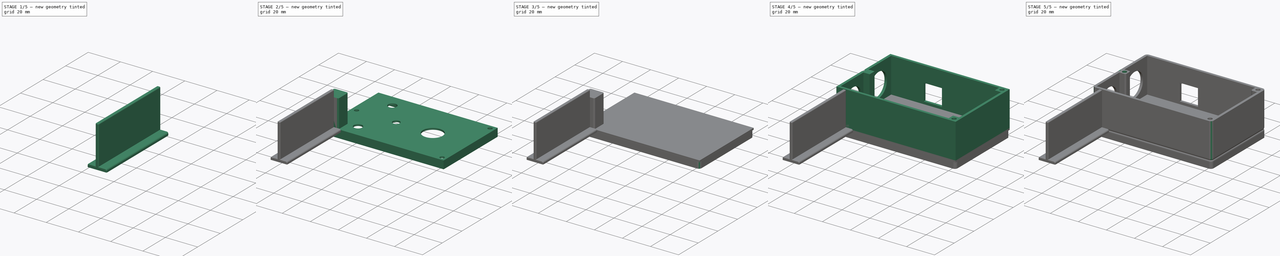
[diagram: build sequence overview — one tinted view per stage of 5, left to right]
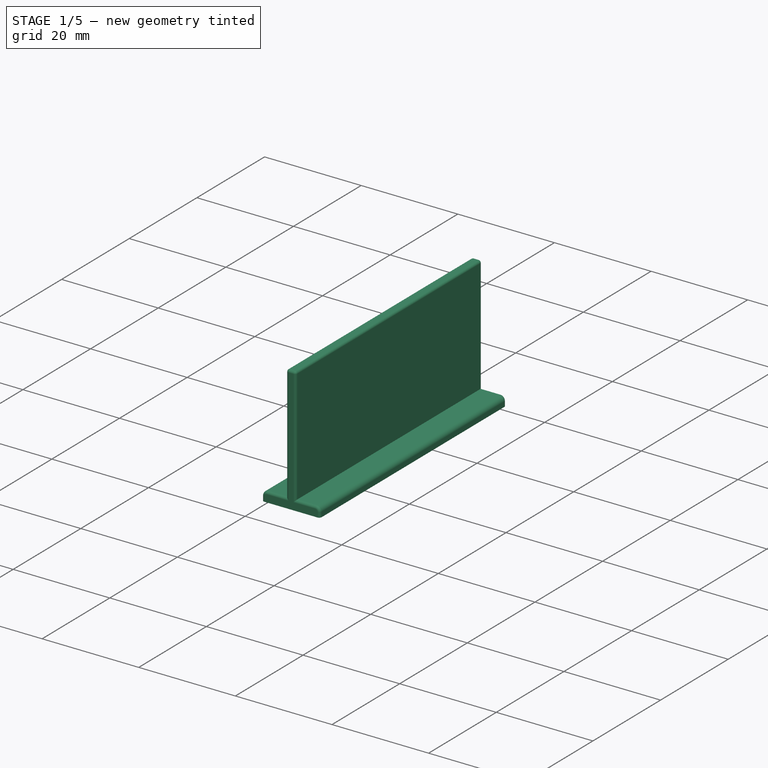
[diagram: stage 1 of 5 — iso view after this stage's code; geometry added in this stage tinted green]
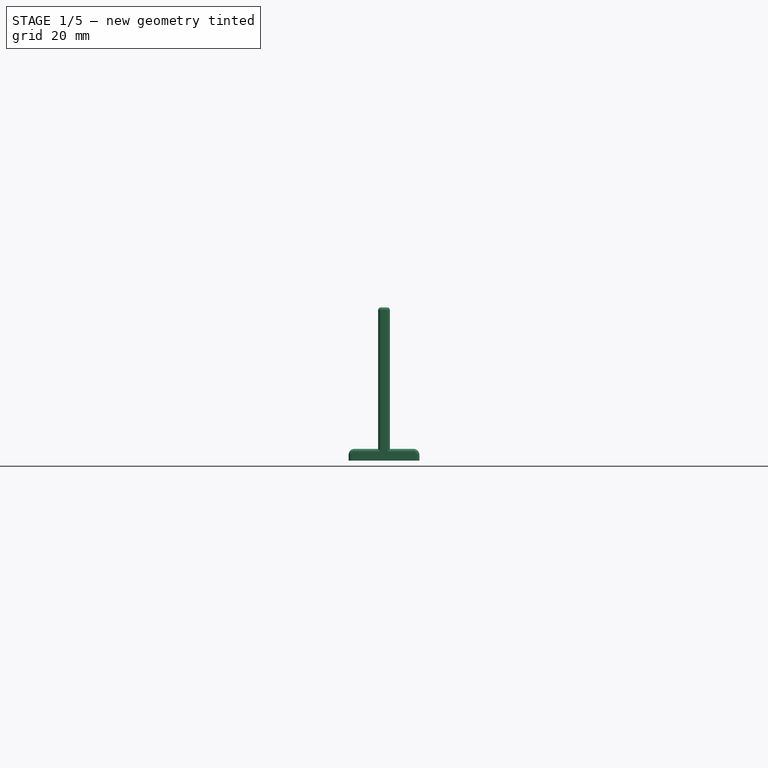
[diagram: stage 1 of 5 — front view after this stage's code; geometry added in this stage tinted green]
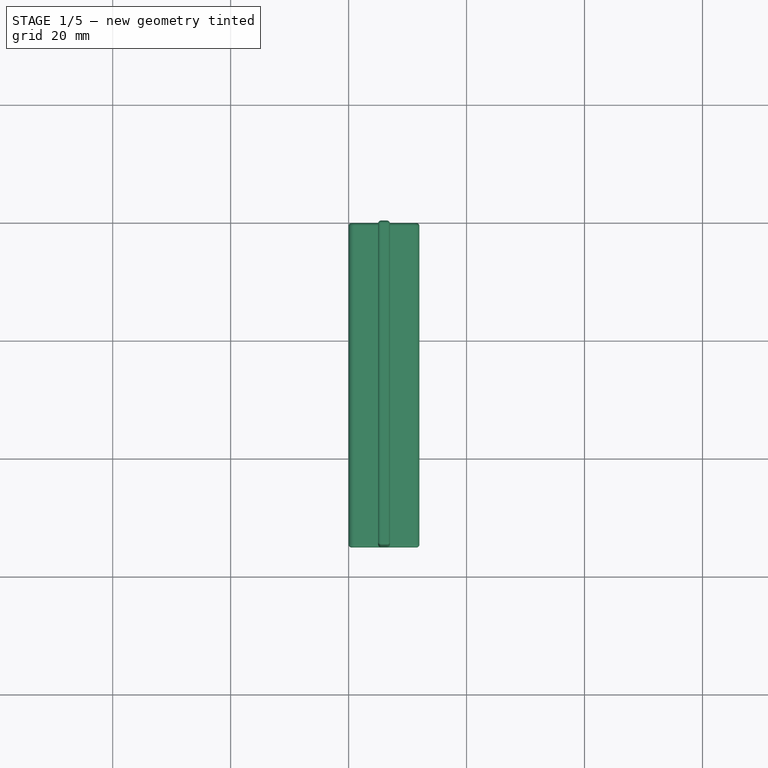
[diagram: stage 1 of 5 — top view after this stage's code; geometry added in this stage tinted green]
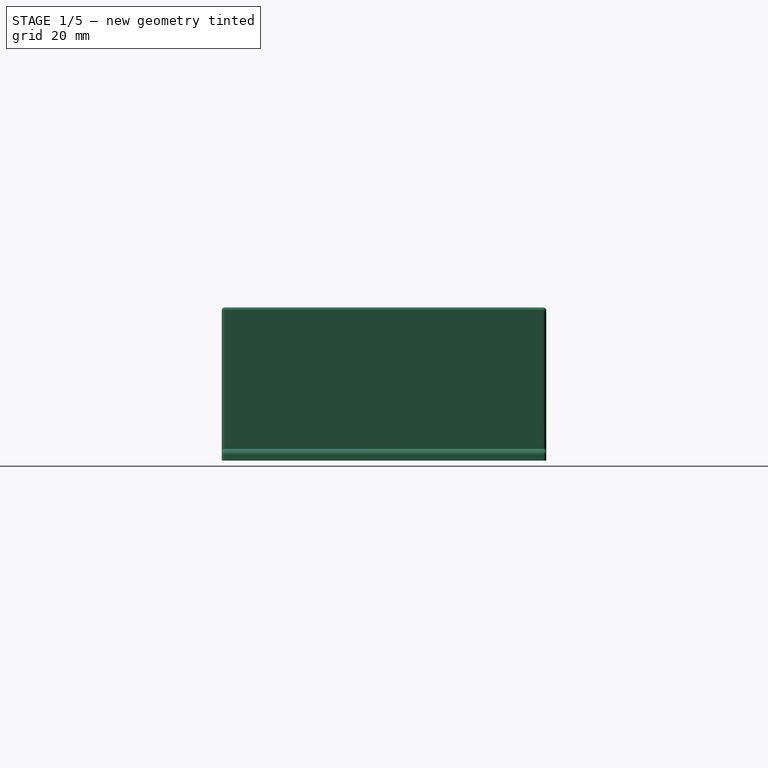
[diagram: stage 1 of 5 — right view after this stage's code; geometry added in this stage tinted green]
FCSTD DOCUMENT  (FreeCAD 0.18R16131 (Git))
Label: Box v2
License: CreativeCommons Attribution-NonCommercial-NoDerivatives
LicenseURL: http://creativecommons.org/licenses/by-nc-nd/4.0/
objects: Sketcher::SketchObject×14, PartDesign::Fillet×10, PartDesign::Pad×8, PartDesign::Pocket×6, PartDesign::Body×4
note: 56 computed .brp shape members not serialized (recipe doc carries the construction recipe); baked Part::Feature solids carry a one-line shape summary decoded from their .brp

FEATURE [PartDesign::Body] Body002  label="Spacer"
  Group = -> [Sketch013,Pad006,Fillet007]
  Origin = -> Origin002
  Placement = pos=(-20,0,0) rot=(0,0,1;0rad)
  Tip = -> Fillet007
FEATURE [Sketcher::SketchObject] Sketch014
  MapMode = 5
  Placement = pos=(0,0,0) rot=(1,0,0;1.5708rad)
  Support = -> [XZ_Plane003]
  sketch-geometry (8):
    g0: LineSegment StartX=0 StartY=0 StartZ=0 EndX=12 EndY=0 EndZ=0
    g1: LineSegment StartX=0 StartY=0 StartZ=0 EndX=0 EndY=2 EndZ=0
    g2: LineSegment StartX=0 StartY=2 StartZ=0 EndX=5 EndY=2 EndZ=0
    g3: LineSegment StartX=5 StartY=2 StartZ=0 EndX=5 EndY=26 EndZ=0
    g4: LineSegment StartX=5 StartY=26 StartZ=0 EndX=7 EndY=26 EndZ=0
    g5: LineSegment StartX=7 StartY=26 StartZ=0 EndX=7 EndY=2 EndZ=0
    g6: LineSegment StartX=7 StartY=2 StartZ=0 EndX=12 EndY=2 EndZ=0
    g7: LineSegment StartX=12 StartY=2 StartZ=0 EndX=12 EndY=0 EndZ=0
  constraints (23):
    c: Coincident(g0,g-1)
    c: Horizontal(g0)
    c: Coincident(g1,g0)
    c: Vertical(g1)
    c: Coincident(g1,g2)
    c: Horizontal(g2)
    c: Coincident(g2,g3)
    c: Vertical(g3)
    c: Coincident(g3,g4)
    c: Horizontal(g4)
    c: Coincident(g4,g5)
    c: Vertical(g5)
    c: Coincident(g5,g6)
    c: Coincident(g6,g7)
    c: Coincident(g7,g0)
    c: Vertical(g7)
    c: DistanceY(g1,g1) = 2
    c: DistanceY(g3,g3) = 24
    c: Equal(g3,g5)
    c: Equal(g1,g7)
    c: DistanceX(g2,g2) = 5
    c: Equal(g2,g6)
    c: DistanceX(g4,g4) = 2
FEATURE [PartDesign::Pad] Pad007
  Length = 55
  Length2 = 100
  Placement = pos=(0,0,0) rot=(1,0,0;1.5708rad)
  Profile = -> Sketch014
  Type = 0
FEATURE [PartDesign::Fillet] Fillet008
  Base = -> Pad007 [Edge14,Edge11]
  BaseFeature = -> Pad007
  Placement = pos=(0,0,0) rot=(1,0,0;1.5708rad)
  Radius = 0.5
FEATURE [PartDesign::Fillet] Fillet009
  Base = -> Fillet008 [Edge30,Edge16]
  BaseFeature = -> Fillet008
  Placement = pos=(0,0,0) rot=(1,0,0;1.5708rad)
  Radius = 1
FEATURE [PartDesign::Fillet] Fillet010
  Base = -> Fillet009 [Edge35,Edge31,Edge27,Edge23,Edge19,Edge36,Edge33,Edge29,Edge15,Edge17,Edge21]
  BaseFeature = -> Fillet009
  Placement = pos=(0,0,0) rot=(1,0,0;1.5708rad)
  Radius = 0.5
FEATURE [PartDesign::Fillet] Fillet011
  Base = -> Fillet010 [Edge12,Edge6,Edge3,Edge11,Edge13,Edge15,Edge17,Edge19,Edge20,Edge18,Edge16]
  BaseFeature = -> Fillet010
  Placement = pos=(0,0,0) rot=(1,0,0;1.5708rad)
  Radius = 0.5
FEATURE [PartDesign::Body] Body003  label="Blocker"
  Group = -> [Sketch014,Pad007,Fillet008,Fillet009,Fillet010,Fillet011]
  Origin = -> Origin003
  Placement = pos=(-45,55,0) rot=(0,0,1;0rad)
  Tip = -> Fillet011
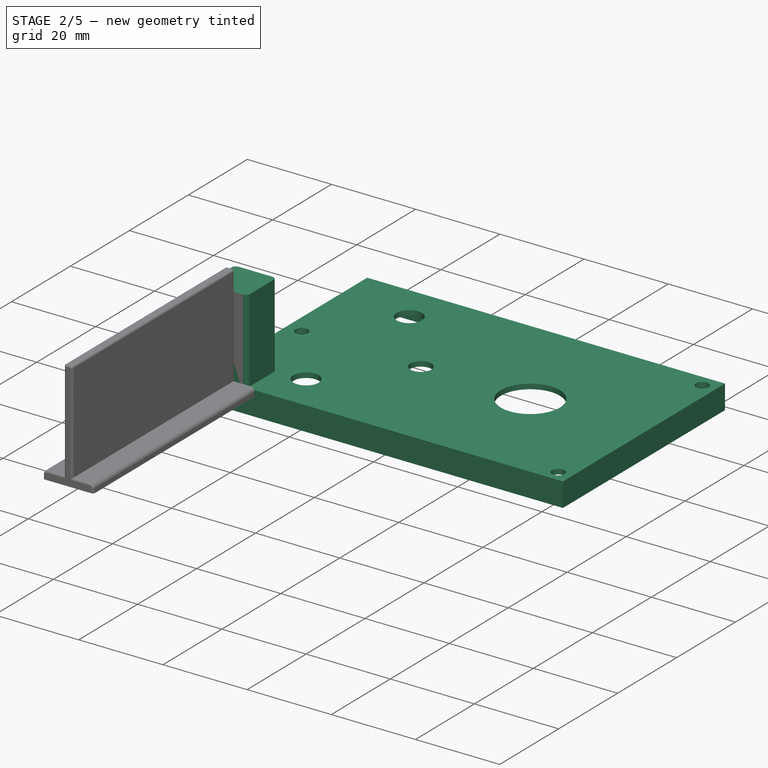
[diagram: stage 2 of 5 — iso view after this stage's code; geometry added in this stage tinted green]
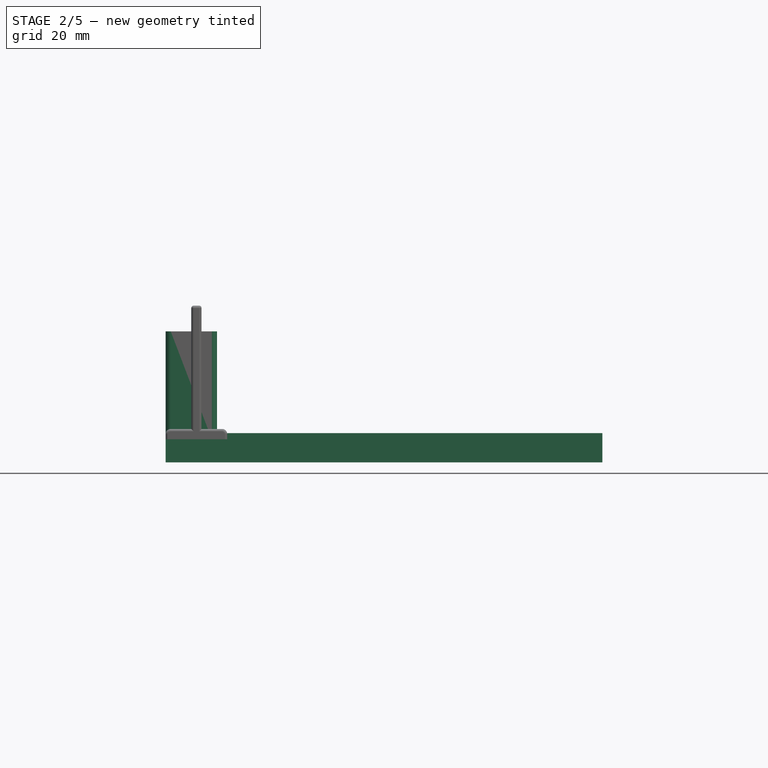
[diagram: stage 2 of 5 — front view after this stage's code; geometry added in this stage tinted green]
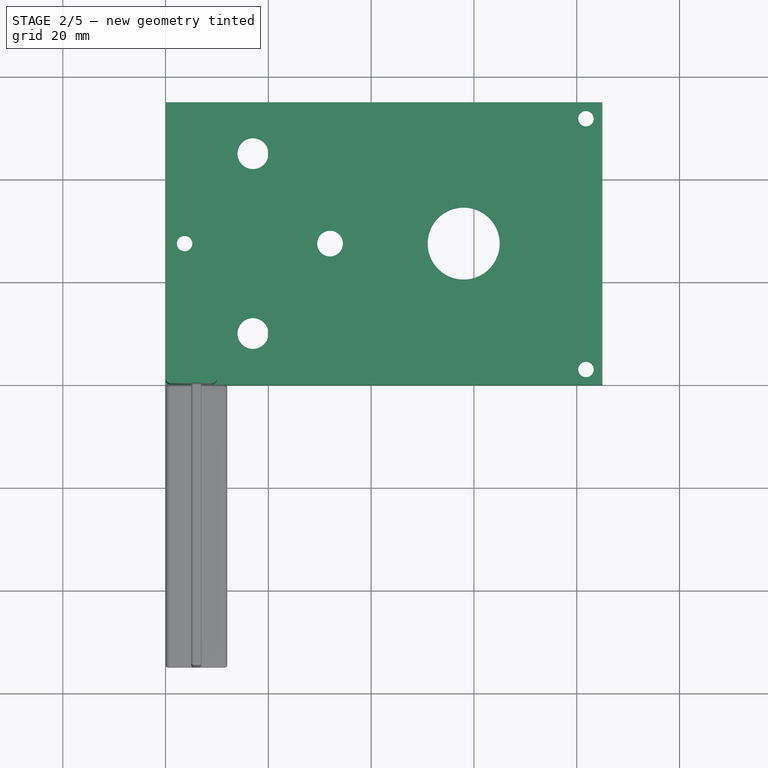
[diagram: stage 2 of 5 — top view after this stage's code; geometry added in this stage tinted green]
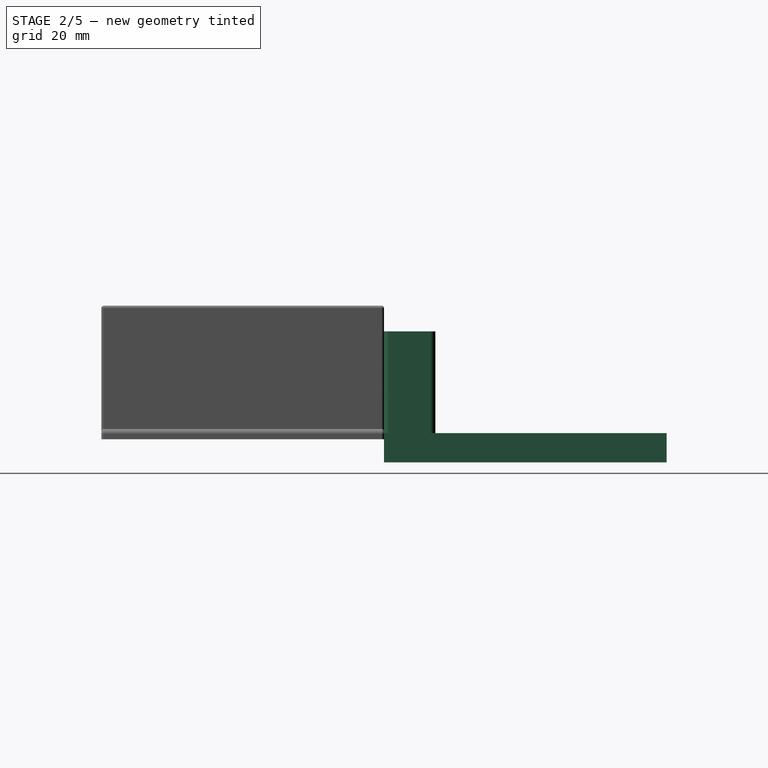
[diagram: stage 2 of 5 — right view after this stage's code; geometry added in this stage tinted green]
FEATURE [Sketcher::SketchObject] Sketch005
  MapMode = 5
  Support = -> [XY_Plane001]
  sketch-geometry (7):
    g0: LineSegment StartX=0 StartY=0 StartZ=0 EndX=85 EndY=0 EndZ=0
    g1: LineSegment StartX=85 StartY=0 StartZ=0 EndX=85 EndY=55 EndZ=0
    g2: LineSegment StartX=85 StartY=55 StartZ=0 EndX=0 EndY=55 EndZ=0
    g3: LineSegment StartX=0 StartY=55 StartZ=0 EndX=0 EndY=0 EndZ=0
    g4: Circle CenterX=3.7 CenterY=27.5 CenterZ=0 NormalX=0 NormalY=0 NormalZ=1 AngleXU=0 Radius=1.5
    g5: Circle CenterX=81.8 CenterY=51.8 CenterZ=0 NormalX=0 NormalY=0 NormalZ=1 AngleXU=0 Radius=1.5
    g6: Circle CenterX=81.8 CenterY=3 CenterZ=0 NormalX=0 NormalY=0 NormalZ=1 AngleXU=0 Radius=1.5
  constraints (20):
    c: Coincident(g0,g1)
    c: Coincident(g1,g2)
    c: Coincident(g2,g3)
    c: Coincident(g3,g0)
    c: Horizontal(g0)
    c: Horizontal(g2)
    c: Vertical(g1)
    c: Vertical(g3)
    c: Coincident(g0,g-1)
    c: DistanceX(g2,g2) = 85
    c: DistanceY(g3,g3) = 55
    c: Radius(g4) = 1.5
    c: Radius(g5) = 1.5
    c: Radius(g6) = 1.5
    c: DistanceX(g0,g4) = 3.7
    c: DistanceX(g5,g1) = 3.2
    c: DistanceX(g6,g0) = 3.2
    c: DistanceY(g5,g1) = 3.2
    c: DistanceY(g0,g6) = 3
    c: DistanceY(g4,g2) = 27.5
FEATURE [PartDesign::Pad] Pad003
  Length = 1.2
  Length2 = 100
  Profile = -> Sketch005
  Type = 0
FEATURE [Sketcher::SketchObject] Sketch006
  ExternalGeometry = -> [Pad003]
  MapMode = 5
  Placement = pos=(0,0,1.2) rot=(0,0,1;0rad)
  Support = -> [Pad003]
  sketch-geometry (5):
    g0: Circle CenterX=17 CenterY=45 CenterZ=0 NormalX=0 NormalY=0 NormalZ=1 AngleXU=0 Radius=3
    g1: Circle CenterX=17 CenterY=10 CenterZ=0 NormalX=0 NormalY=0 NormalZ=1 AngleXU=0 Radius=3
    g2: Circle CenterX=32 CenterY=27.5 CenterZ=0 NormalX=0 NormalY=0 NormalZ=1 AngleXU=0 Radius=2.5
    g3: Circle [constr] CenterX=58 CenterY=27.5 CenterZ=0 NormalX=0 NormalY=0 NormalZ=1 AngleXU=0 Radius=14
    g4: Circle CenterX=58 CenterY=27.5 CenterZ=0 NormalX=0 NormalY=0 NormalZ=1 AngleXU=0 Radius=7
  constraints (14):
    c: DistanceX(g-3,g0) = 17
    c: DistanceX(g-1,g1) = 17
    c: DistanceY(g0,g-3) = 10
    c: DistanceY(g-1,g1) = 10
    c: DistanceX(g-3,g2) = 32
    c: DistanceY(g2,g-3) = 27.5
    c: Radius(g0) = 3
    c: Radius(g1) = 3
    c: Radius(g2) = 2.5
    c: Radius(g3) = 14
    c: DistanceX(g3,g-3) = 27
    c: DistanceY(g3,g-3) = 27.5
    c: Coincident(g4,g3)
    c: Radius(g4) = 7
FEATURE [PartDesign::Pocket] Pocket002
  BaseFeature = -> Pad003
  Length = 2
  Length2 = 100
  Profile = -> Sketch006
  Type = 0
FEATURE [Sketcher::SketchObject] Sketch007
  ExternalGeometry = -> [Pocket002]
  MapMode = 5
  Placement = pos=(0,0,0) rot=(1,0,0;3.14159rad)
  Support = -> [Pocket002]
  sketch-geometry (8):
    g0: LineSegment StartX=0 StartY=0 StartZ=0 EndX=85 EndY=0 EndZ=0
    g1: LineSegment StartX=85 StartY=0 StartZ=0 EndX=85 EndY=-55 EndZ=0
    g2: LineSegment StartX=85 StartY=-55 StartZ=0 EndX=0 EndY=-55 EndZ=0
    g3: LineSegment StartX=0 StartY=-55 StartZ=0 EndX=0 EndY=0 EndZ=0
    g4: LineSegment StartX=1.2 StartY=-1.2 StartZ=0 EndX=83.8 EndY=-1.2 EndZ=0
    g5: LineSegment StartX=83.8 StartY=-1.2 StartZ=0 EndX=83.8 EndY=-53.8 EndZ=0
    g6: LineSegment StartX=83.8 StartY=-53.8 StartZ=0 EndX=1.2 EndY=-53.8 EndZ=0
    g7: LineSegment StartX=1.2 StartY=-53.8 StartZ=0 EndX=1.2 EndY=-1.2 EndZ=0
  constraints (22):
    c: Coincident(g0,g1)
    c: Coincident(g1,g2)
    c: Coincident(g2,g3)
    c: Coincident(g3,g0)
    c: Horizontal(g0)
    c: Horizontal(g2)
    c: Vertical(g1)
    c: Vertical(g3)
    c: Coincident(g0,g-1)
    c: Coincident(g1,g-4)
    c: Coincident(g4,g5)
    c: Coincident(g5,g6)
    c: Coincident(g6,g7)
    c: Coincident(g7,g4)
    c: Horizontal(g4)
    c: Horizontal(g6)
    c: Vertical(g5)
    c: Vertical(g7)
    c: DistanceX(g0,g4) = 1.2
    c: DistanceX(g4,g0) = 1.2
    c: DistanceY(g4,g0) = 1.2
    c: DistanceY(g1,g5) = 1.2
FEATURE [PartDesign::Pad] Pad004
  BaseFeature = -> Pocket002
  Length = 4.5
  Length2 = 100
  Profile = -> Sketch007
  Type = 0
FEATURE [PartDesign::Body] Body001  label="Top"
  Group = -> [Sketch005,Pad003,Sketch006,Pocket002,Sketch007,Pad004,Sketch012,Pocket006,Fillet005,Fillet006]
  Origin = -> Origin001
  Placement = pos=(0,0,40) rot=(0,0,1;0rad)
  Tip = -> Fillet006
FEATURE [Sketcher::SketchObject] Sketch013
  MapMode = 5
  Support = -> [XY_Plane002]
  sketch-geometry (4):
    g0: LineSegment StartX=0 StartY=0 StartZ=0 EndX=10 EndY=0 EndZ=0
    g1: LineSegment StartX=10 StartY=0 StartZ=0 EndX=10 EndY=10 EndZ=0
    g2: LineSegment StartX=10 StartY=10 StartZ=0 EndX=0 EndY=10 EndZ=0
    g3: LineSegment StartX=0 StartY=10 StartZ=0 EndX=0 EndY=0 EndZ=0
  constraints (11):
    c: Coincident(g0,g1)
    c: Coincident(g1,g2)
    c: Coincident(g2,g3)
    c: Coincident(g3,g0)
    c: Horizontal(g0)
    c: Horizontal(g2)
    c: Vertical(g1)
    c: Vertical(g3)
    c: Coincident(g0,g-1)
    c: DistanceX(g2,g2) = 10
    c: DistanceY(g3,g3) = 10
FEATURE [PartDesign::Pad] Pad006
  Length = 21
  Length2 = 100
  Profile = -> Sketch013
  Type = 0
FEATURE [PartDesign::Fillet] Fillet007
  Base = -> Pad006 [Edge2,Edge5,Edge1,Edge8]
  BaseFeature = -> Pad006
  Radius = 1
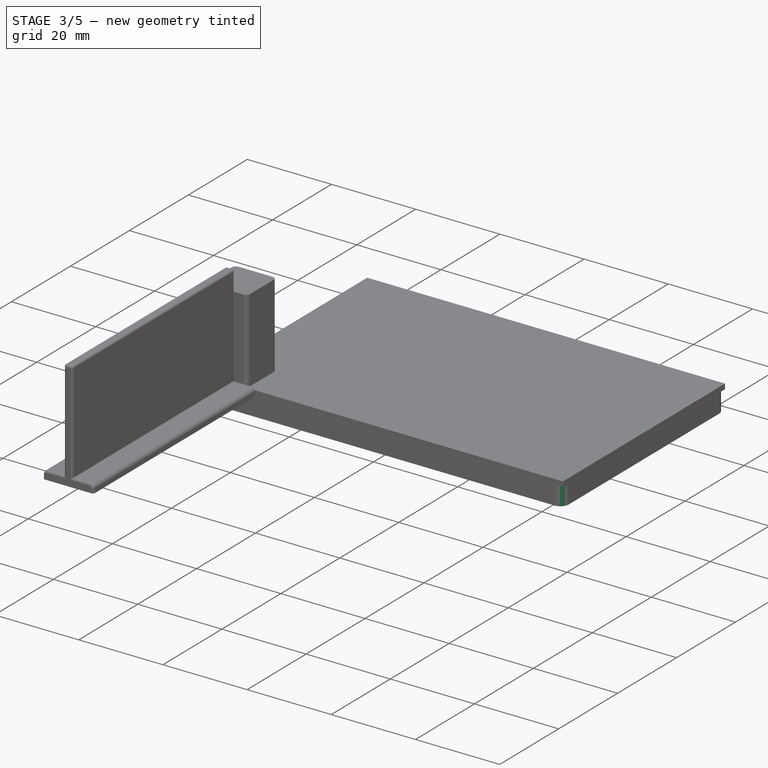
[diagram: stage 3 of 5 — iso view after this stage's code; geometry added in this stage tinted green]
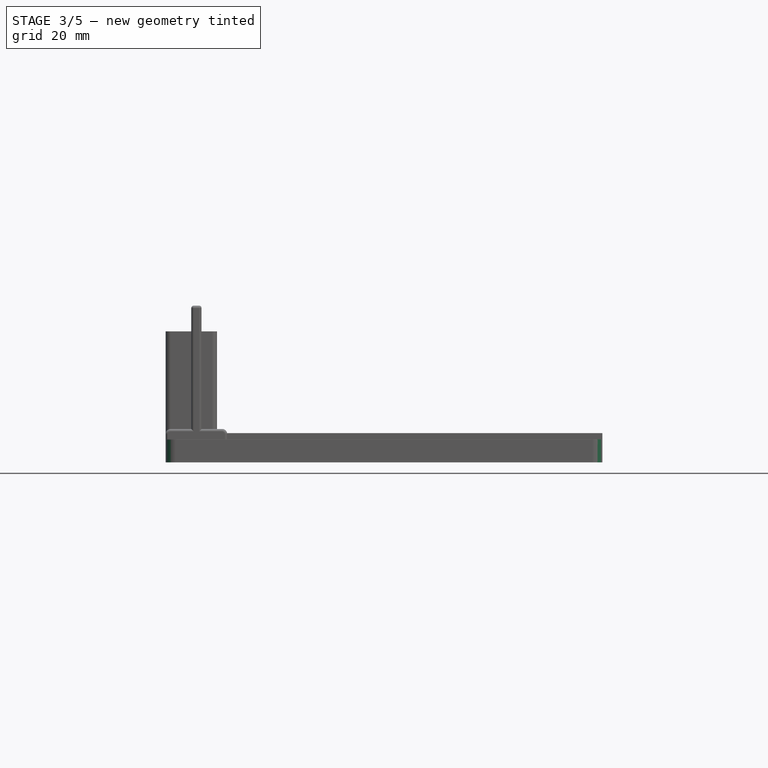
[diagram: stage 3 of 5 — front view after this stage's code; geometry added in this stage tinted green]
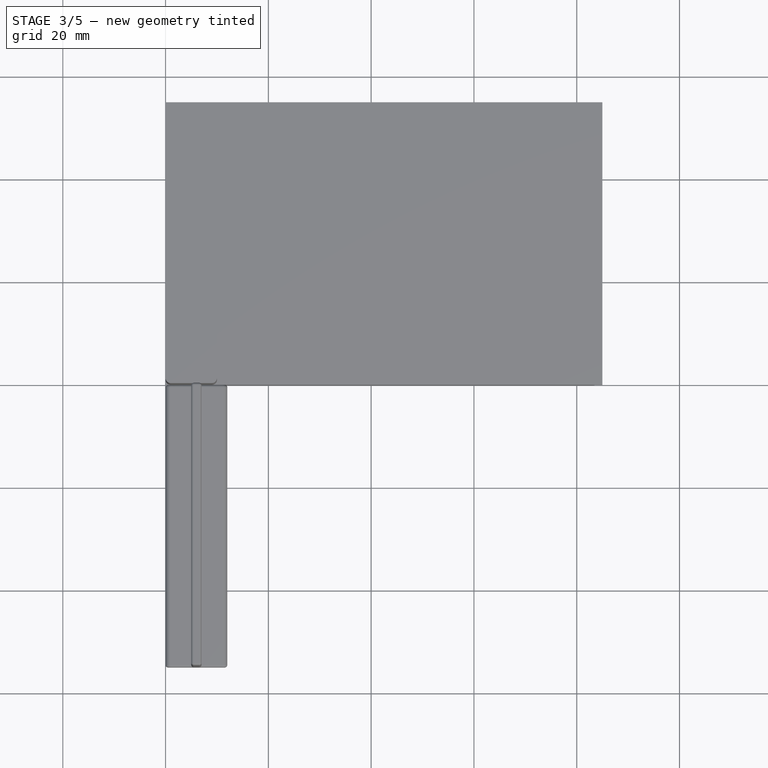
[diagram: stage 3 of 5 — top view after this stage's code; geometry added in this stage tinted green]
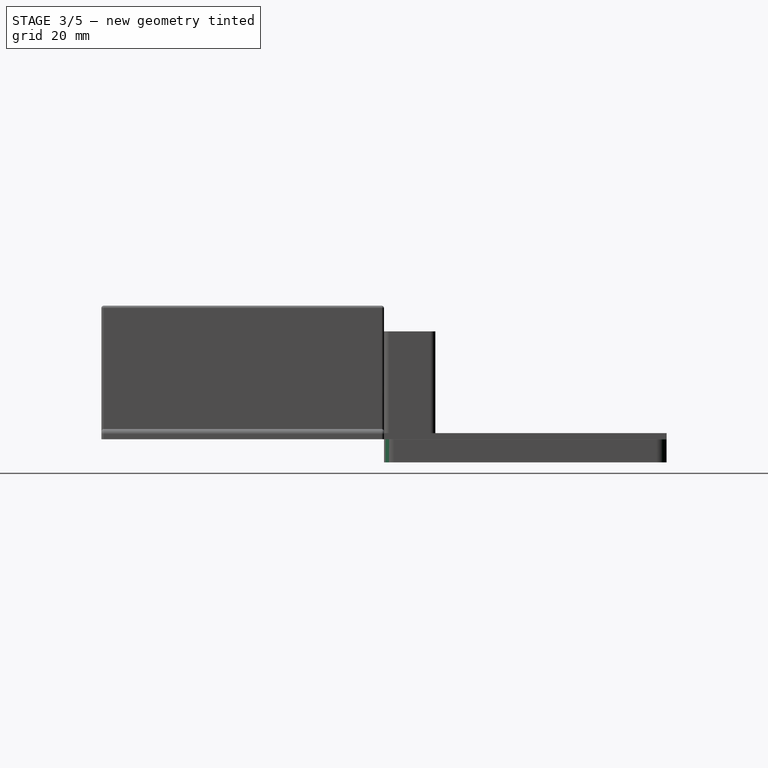
[diagram: stage 3 of 5 — right view after this stage's code; geometry added in this stage tinted green]
FEATURE [Sketcher::SketchObject] Sketch
  MapMode = 5
  Support = -> [XY_Plane]
  sketch-geometry (4):
    g0: LineSegment StartX=0 StartY=0 StartZ=0 EndX=85 EndY=0 EndZ=0
    g1: LineSegment StartX=85 StartY=0 StartZ=0 EndX=85 EndY=55 EndZ=0
    g2: LineSegment StartX=85 StartY=55 StartZ=0 EndX=0 EndY=55 EndZ=0
    g3: LineSegment StartX=0 StartY=55 StartZ=0 EndX=0 EndY=0 EndZ=0
  constraints (11):
    c: Coincident(g0,g1)
    c: Coincident(g1,g2)
    c: Coincident(g2,g3)
    c: Coincident(g3,g0)
    c: Horizontal(g0)
    c: Horizontal(g2)
    c: Vertical(g1)
    c: Vertical(g3)
    c: Coincident(g0,g-1)
    c: DistanceX(g2,g2) = 85
    c: DistanceY(g3,g3) = 55
FEATURE [PartDesign::Pad] Pad
  Length = 1.2
  Length2 = 100
  Profile = -> Sketch
  Type = 0
FEATURE [PartDesign::Body] Body  label="Bottom"
  Group = -> [Sketch,Pad,Sketch001,Pad001,Sketch002,Pocket,Sketch003,Pad002,Sketch004,Pocket001,Sketch008,Pocket003,Fillet,Fillet001,Pad005,Sketch010,Sketch011,Pocket005,Fillet004]
  Origin = -> Origin
  Tip = -> Fillet004
FEATURE [Sketcher::SketchObject] Sketch012
  ExternalGeometry = -> [Pad004]
  MapMode = 5
  Placement = pos=(0,0,1.2) rot=(0,0,1;0rad)
  Support = -> [Pad004]
  sketch-geometry (5):
    g0: LineSegment StartX=30 StartY=37.5 StartZ=0 EndX=34 EndY=37.5 EndZ=0
    g1: LineSegment StartX=34 StartY=37.5 StartZ=0 EndX=34 EndY=45.5 EndZ=0
    g2: LineSegment StartX=34 StartY=45.5 StartZ=0 EndX=30 EndY=45.5 EndZ=0
    g3: LineSegment StartX=30 StartY=45.5 StartZ=0 EndX=30 EndY=37.5 EndZ=0
    g4: GeomPoint X=32 Y=37.5 Z=0
  constraints (13):
    c: Coincident(g0,g1)
    c: Coincident(g1,g2)
    c: Coincident(g2,g3)
    c: Coincident(g3,g0)
    c: Horizontal(g0)
    c: Horizontal(g2)
    c: Vertical(g1)
    c: Vertical(g3)
    c: Symmetric(g0,g0,g4)
    c: Vertical(g4,g-3)
    c: DistanceY(g-3,g0) = 10
    c: DistanceY(g1,g1) = 8
    c: DistanceX(g2,g2) = 4
FEATURE [PartDesign::Pocket] Pocket006
  BaseFeature = -> Pad004
  Length = 5
  Length2 = 100
  Profile = -> Sketch012
  Type = 2
FEATURE [PartDesign::Fillet] Fillet005
  Base = -> Pocket006 [Edge29,Edge8,Edge12,Edge2,Edge5,Edge27,Edge11,Edge1]
  BaseFeature = -> Pocket006
  Radius = 2
FEATURE [PartDesign::Fillet] Fillet006
  Base = -> Fillet005 [Edge16,Edge14,Edge18,Edge8,Edge4,Edge11,Edge15,Edge17]
  BaseFeature = -> Fillet005
  Radius = 1.3
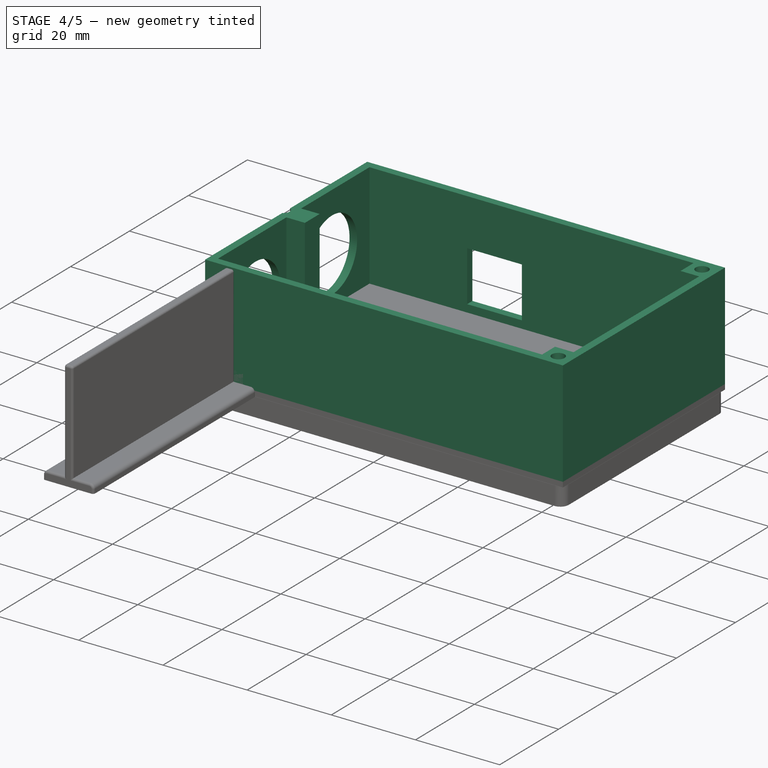
[diagram: stage 4 of 5 — iso view after this stage's code; geometry added in this stage tinted green]
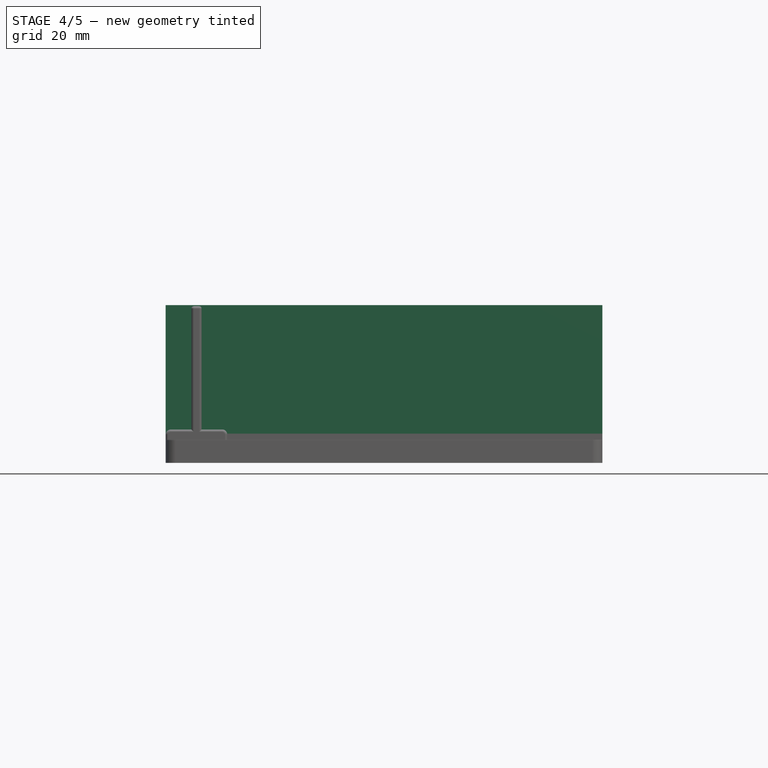
[diagram: stage 4 of 5 — front view after this stage's code; geometry added in this stage tinted green]
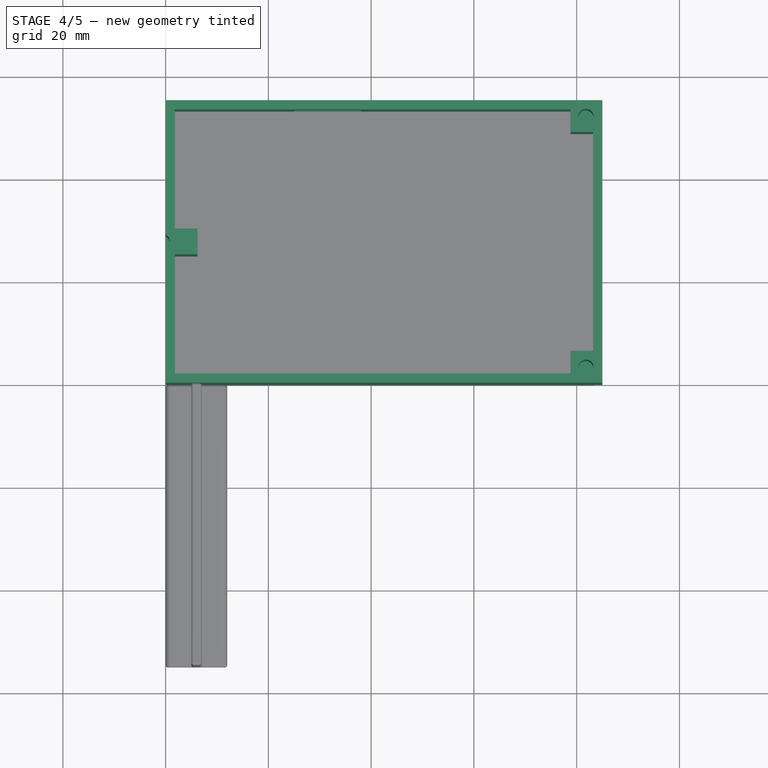
[diagram: stage 4 of 5 — top view after this stage's code; geometry added in this stage tinted green]
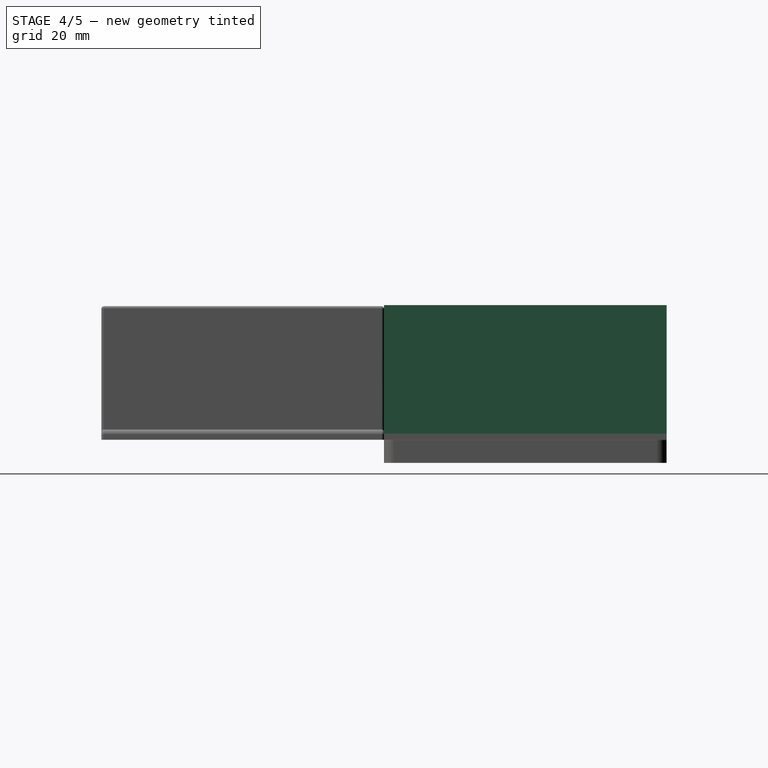
[diagram: stage 4 of 5 — right view after this stage's code; geometry added in this stage tinted green]
FEATURE [Sketcher::SketchObject] Sketch001
  ExternalGeometry = -> [Pad]
  MapMode = 5
  Placement = pos=(0,0,1.2) rot=(0,0,1;0rad)
  Support = -> [Pad]
  sketch-geometry (8):
    g0: LineSegment StartX=0 StartY=55 StartZ=0 EndX=85 EndY=55 EndZ=0
    g1: LineSegment StartX=85 StartY=55 StartZ=0 EndX=85 EndY=0 EndZ=0
    g2: LineSegment StartX=85 StartY=0 StartZ=0 EndX=0 EndY=0 EndZ=0
    g3: LineSegment StartX=0 StartY=0 StartZ=0 EndX=0 EndY=55 EndZ=0
    g4: LineSegment StartX=1.8 StartY=53.2 StartZ=0 EndX=83.2 EndY=53.2 EndZ=0
    g5: LineSegment StartX=83.2 StartY=53.2 StartZ=0 EndX=83.2 EndY=1.8 EndZ=0
    g6: LineSegment StartX=83.2 StartY=1.8 StartZ=0 EndX=1.8 EndY=1.8 EndZ=0
    g7: LineSegment StartX=1.8 StartY=1.8 StartZ=0 EndX=1.8 EndY=53.2 EndZ=0
  constraints (22):
    c: Coincident(g0,g1)
    c: Coincident(g1,g2)
    c: Coincident(g2,g3)
    c: Coincident(g3,g0)
    c: Horizontal(g0)
    c: Horizontal(g2)
    c: Vertical(g1)
    c: Vertical(g3)
    c: Coincident(g0,g-3)
    c: Coincident(g1,g-4)
    c: Coincident(g4,g5)
    c: Coincident(g5,g6)
    c: Coincident(g6,g7)
    c: Coincident(g7,g4)
    c: Horizontal(g4)
    c: Horizontal(g6)
    c: Vertical(g5)
    c: Vertical(g7)
    c: DistanceX(g0,g4) = 1.8
    c: DistanceX(g5,g1) = 1.8
    c: DistanceY(g4,g0) = 1.8
    c: DistanceY(g2,g6) = 1.8
FEATURE [PartDesign::Pad] Pad001
  BaseFeature = -> Pad
  Length = 25
  Length2 = 100
  Profile = -> Sketch001
  Type = 0
FEATURE [Sketcher::SketchObject] Sketch002
  ExternalGeometry = -> [Pad001]
  MapMode = 5
  Placement = pos=(0,0,0) rot=(0.57735,-0.57735,-0.57735;2.0944rad)
  Support = -> [Pad001]
  sketch-geometry (2):
    g0: Circle CenterX=-40.5 CenterY=12.2 CenterZ=0 NormalX=0 NormalY=0 NormalZ=1 AngleXU=0 Radius=8.5
    g1: Circle CenterX=-14.5 CenterY=12.2 CenterZ=0 NormalX=0 NormalY=0 NormalZ=1 AngleXU=0 Radius=8.5
  constraints (6):
    c: Radius(g0) = 8.5
    c: Radius(g1) = 8.5
    c: DistanceX(g0,g1) = 26
    c: DistanceX(g-3,g0) = 14.5
    c: DistanceY(g-3,g0) = 11
    c: DistanceY(g-4,g1) = 11
FEATURE [PartDesign::Pocket] Pocket
  BaseFeature = -> Pad001
  Length = 5
  Length2 = 100
  Profile = -> Sketch002
  Type = 0
FEATURE [Sketcher::SketchObject] Sketch003
  ExternalGeometry = -> [Pocket]
  MapMode = 5
  Placement = pos=(0,0,1.2) rot=(0,0,1;0rad)
  Support = -> [Pocket]
  sketch-geometry (12):
    g0: LineSegment StartX=85 StartY=55 StartZ=0 EndX=78.8 EndY=55 EndZ=0
    g1: LineSegment StartX=78.8 StartY=55 StartZ=0 EndX=78.8 EndY=48.8 EndZ=0
    g2: LineSegment StartX=78.8 StartY=48.8 StartZ=0 EndX=85 EndY=48.8 EndZ=0
    g3: LineSegment StartX=85 StartY=48.8 StartZ=0 EndX=85 EndY=55 EndZ=0
    g4: LineSegment StartX=85 StartY=0 StartZ=0 EndX=78.8 EndY=0 EndZ=0
    g5: LineSegment StartX=78.8 StartY=0 StartZ=0 EndX=78.8 EndY=6.2 EndZ=0
    g6: LineSegment StartX=78.8 StartY=6.2 StartZ=0 EndX=85 EndY=6.2 EndZ=0
    g7: LineSegment StartX=85 StartY=6.2 StartZ=0 EndX=85 EndY=0 EndZ=0
    g8: LineSegment StartX=1.2 StartY=30 StartZ=0 EndX=6.2 EndY=30 EndZ=0
    g9: LineSegment StartX=6.2 StartY=30 StartZ=0 EndX=6.2 EndY=25 EndZ=0
    g10: LineSegment StartX=6.2 StartY=25 StartZ=0 EndX=1.2 EndY=25 EndZ=0
    g11: LineSegment StartX=1.2 StartY=25 StartZ=0 EndX=1.2 EndY=30 EndZ=0
  constraints (34):
    c: Coincident(g0,g1)
    c: Coincident(g1,g2)
    c: Coincident(g2,g3)
    c: Coincident(g3,g0)
    c: Horizontal(g0)
    c: Horizontal(g2)
    c: Vertical(g1)
    c: Vertical(g3)
    c: Coincident(g0,g-5)
    c: Coincident(g4,g5)
    c: Coincident(g5,g6)
    c: Coincident(g6,g7)
    c: Coincident(g7,g4)
    c: Horizontal(g4)
    c: Horizontal(g6)
    c: Vertical(g5)
    c: Vertical(g7)
    c: Coincident(g4,g-6)
    c: DistanceX(g2,g2) = 6.2
    c: DistanceX(g6,g6) = 6.2
    c: DistanceY(g1,g1) = 6.2
    c: DistanceY(g5,g5) = 6.2
    c: Coincident(g8,g9)
    c: Coincident(g9,g10)
    c: Coincident(g10,g11)
    c: Coincident(g11,g8)
    c: Horizontal(g8)
    c: Horizontal(g10)
    c: Vertical(g9)
    c: Vertical(g11)
    c: DistanceX(g-5,g8) = 1.2
    c: DistanceY(g8,g-5) = 25
    c: DistanceY(g9,g9) = 5
    c: DistanceX(g10,g10) = 5
FEATURE [PartDesign::Pad] Pad002
  BaseFeature = -> Pocket
  Length = 25
  Length2 = 100
  Profile = -> Sketch003
  Type = 0
FEATURE [Sketcher::SketchObject] Sketch004
  ExternalGeometry = -> [Pad002]
  MapMode = 5
  Placement = pos=(0,0,26.2) rot=(0,0,1;0rad)
  Support = -> [Pad002]
  sketch-geometry (3):
    g0: Circle CenterX=-0.7 CenterY=27.5 CenterZ=0 NormalX=0 NormalY=0 NormalZ=1 AngleXU=0 Radius=1.5
    g1: Circle CenterX=81.8 CenterY=51.8 CenterZ=0 NormalX=0 NormalY=0 NormalZ=1 AngleXU=0 Radius=1.5
    g2: Circle CenterX=81.8 CenterY=3 CenterZ=0 NormalX=0 NormalY=0 NormalZ=1 AngleXU=0 Radius=1.5
  constraints (9):
    c: DistanceX(g0,g-3) = 2.5
    c: DistanceY(g-4,g0) = 2.5
    c: Radius(g0) = 1.5
    c: Radius(g1) = 1.5
    c: DistanceX(g-5,g1) = 3
    c: DistanceY(g-5,g1) = 3
    c: Radius(g2) = 1.5
    c: DistanceX(g-7,g2) = 3
    c: DistanceY(g-8,g2) = 3
FEATURE [PartDesign::Pocket] Pocket001
  BaseFeature = -> Pad002
  Length = 20
  Length2 = 100
  Profile = -> Sketch004
  Type = 0
FEATURE [Sketcher::SketchObject] Sketch008
  MapMode = 5
  Placement = pos=(0,55,0) rot=(0,0.707107,0.707107;3.14159rad)
  Support = -> [Pocket001]
  sketch-geometry (4):
    g0: LineSegment StartX=-38 StartY=3 StartZ=0 EndX=-25 EndY=3 EndZ=0
    g1: LineSegment StartX=-25 StartY=3 StartZ=0 EndX=-25 EndY=15 EndZ=0
    g2: LineSegment StartX=-25 StartY=15 StartZ=0 EndX=-38 EndY=15 EndZ=0
    g3: LineSegment StartX=-38 StartY=15 StartZ=0 EndX=-38 EndY=3 EndZ=0
  constraints (12):
    c: Coincident(g0,g1)
    c: Coincident(g1,g2)
    c: Coincident(g2,g3)
    c: Coincident(g3,g0)
    c: Horizontal(g0)
    c: Horizontal(g2)
    c: Vertical(g1)
    c: Vertical(g3)
    c: DistanceX(g0,g-1) = 38
    c: DistanceX(g0,g-1) = 25
    c: DistanceY(g-1,g0) = 3
    c: DistanceY(g3,g3) = 12
FEATURE [PartDesign::Pocket] Pocket003
  BaseFeature = -> Pocket001
  Length = 5
  Length2 = 100
  Profile = -> Sketch008
  Type = 2
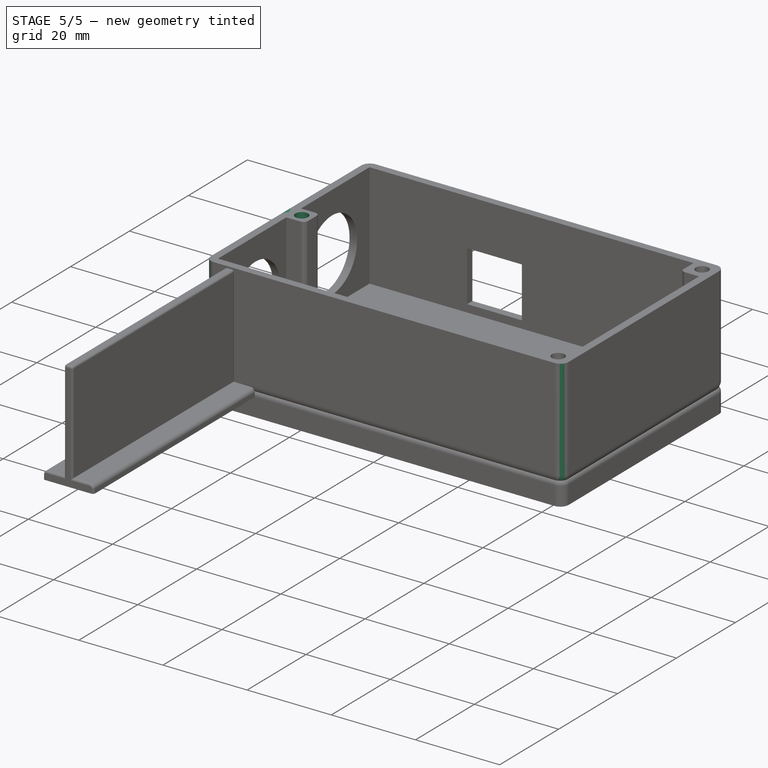
[diagram: stage 5 of 5 — iso view after this stage's code; geometry added in this stage tinted green]
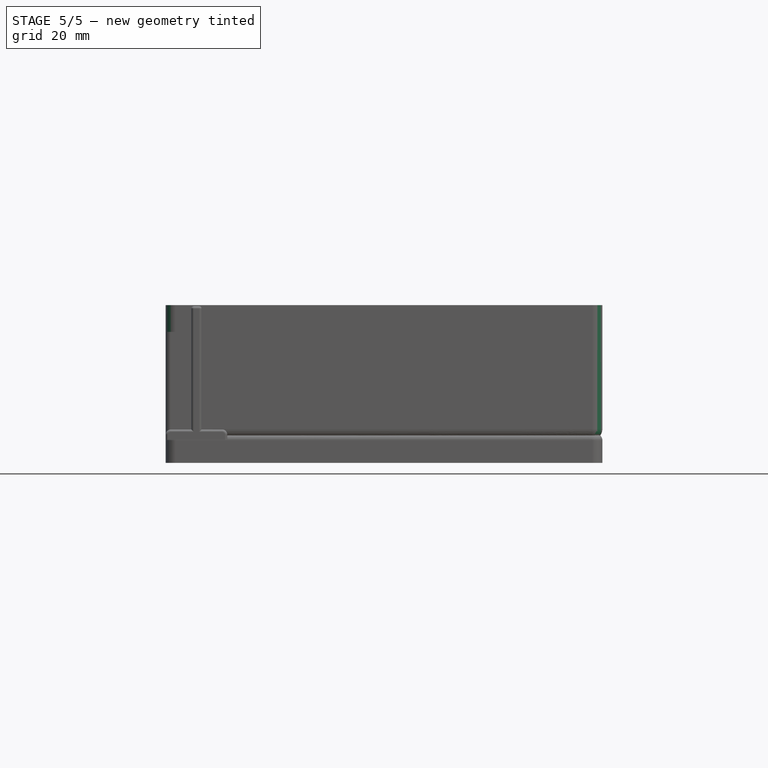
[diagram: stage 5 of 5 — front view after this stage's code; geometry added in this stage tinted green]
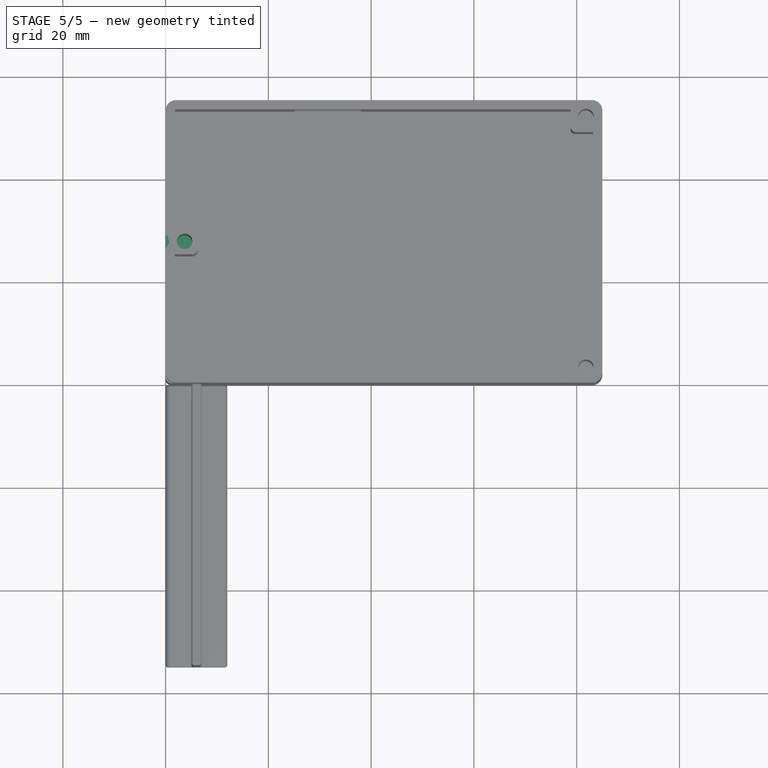
[diagram: stage 5 of 5 — top view after this stage's code; geometry added in this stage tinted green]
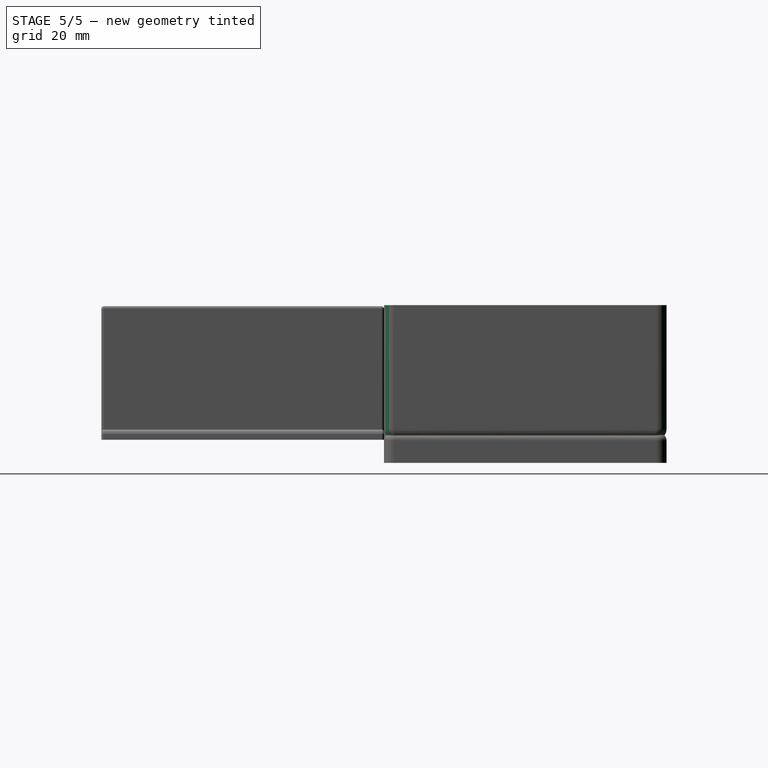
[diagram: stage 5 of 5 — right view after this stage's code; geometry added in this stage tinted green]
FEATURE [PartDesign::Fillet] Fillet
  Base = -> Pocket003 [Edge35,Edge9,Edge19,Edge2,Edge22,Edge6,Edge1,Edge15]
  BaseFeature = -> Pocket003
  Radius = 2
FEATURE [PartDesign::Fillet] Fillet001
  Base = -> Fillet [Edge12,Edge11,Edge9,Edge7,Edge1,Edge6,Edge8,Edge10]
  BaseFeature = -> Fillet
  Radius = 2.1
FEATURE [PartDesign::Pad] Pad005
  BaseFeature = -> Fillet001
  Length = 20
  Length2 = 100
  Profile = -> Fillet001 [Face34]
  Type = 0
FEATURE [Sketcher::SketchObject] Sketch010
  MapMode = 5
  Placement = pos=(0,0,26.2) rot=(0,0,1;0rad)
  Support = -> [Pad005]
FEATURE [Sketcher::SketchObject] Sketch011
  ExternalGeometry = -> [Pad005]
  MapMode = 5
  Placement = pos=(0,0,26.2) rot=(0,0,1;0rad)
  Support = -> [Pad005]
  sketch-geometry (3):
    g0: GeomPoint X=0 Y=27.5 Z=0
    g1: LineSegment [constr] StartX=2 StartY=55 StartZ=0 EndX=0 EndY=55 EndZ=0
    g2: Circle CenterX=3.7 CenterY=27.5 CenterZ=0 NormalX=0 NormalY=0 NormalZ=1 AngleXU=0 Radius=1.5
  constraints (7):
    c: PointOnObject(g0,g-2)
    c: Coincident(g1,g-4)
    c: Horizontal(g1)
    c: Symmetric(g1,g-1,g0)
    c: Horizontal(g0,g2)
    c: DistanceX(g0,g2) = 3.7
    c: Radius(g2) = 1.5
FEATURE [PartDesign::Pocket] Pocket005
  BaseFeature = -> Pad005
  Length = 20
  Length2 = 100
  Profile = -> Sketch011
  Type = 0
FEATURE [PartDesign::Fillet] Fillet004
  Base = -> Pocket005 [Edge152,Edge148,Edge146,Edge139]
  BaseFeature = -> Pocket005
  Radius = 1
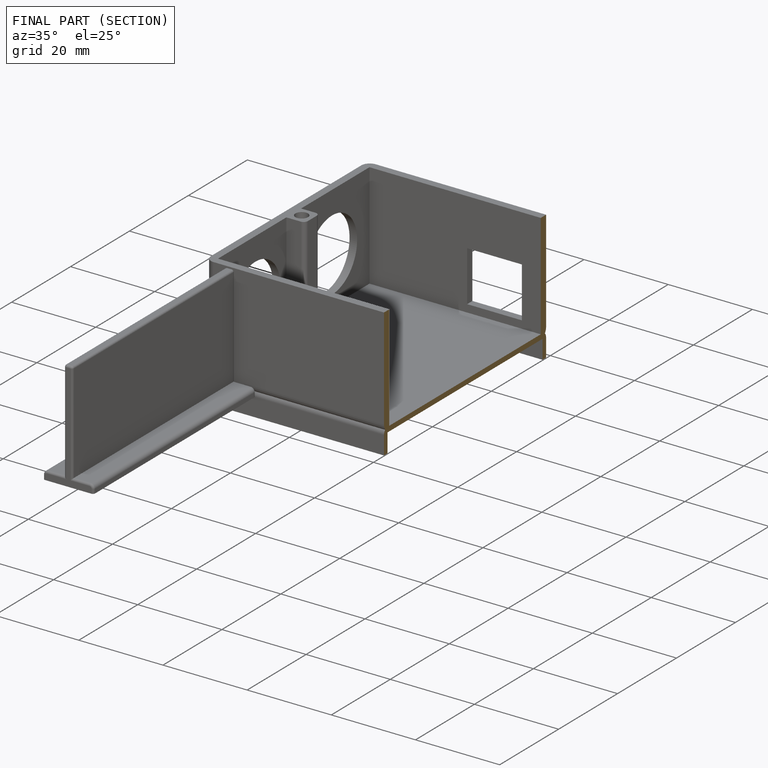
[diagram: finished part — half-section view (interior)]
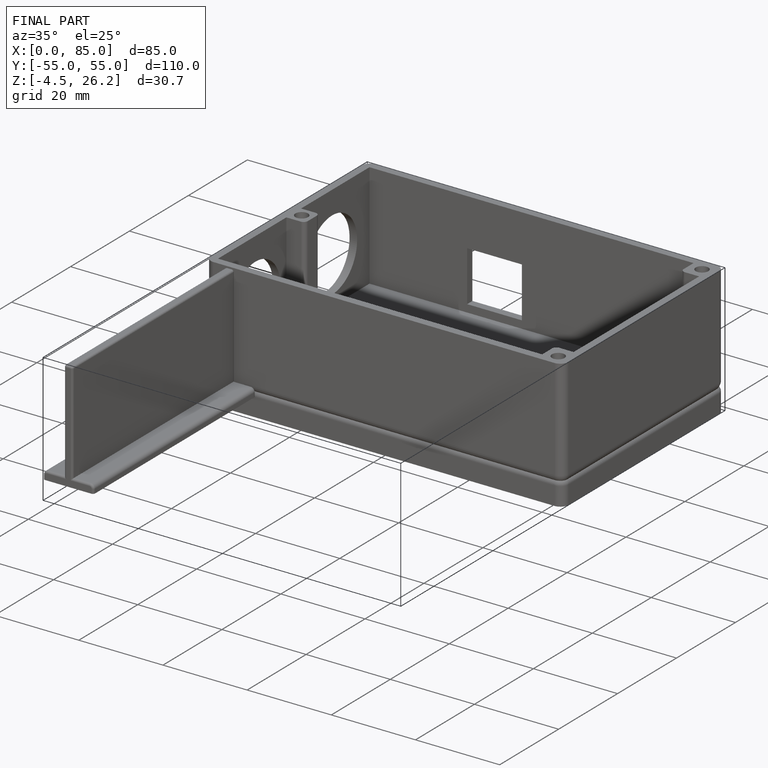
[diagram: finished part — iso view with bounding-box wireframe]
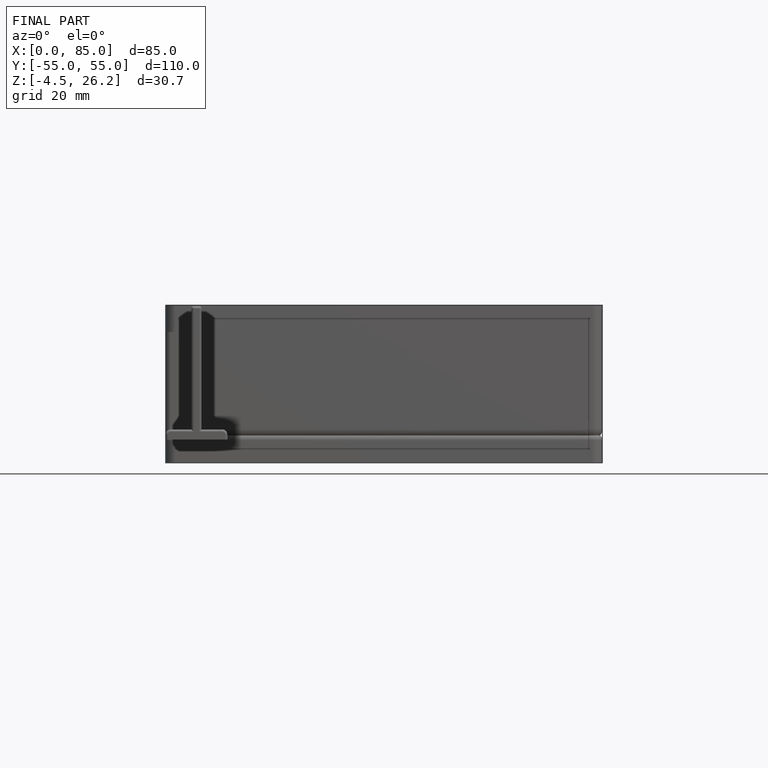
[diagram: finished part — front view with bounding-box wireframe]
